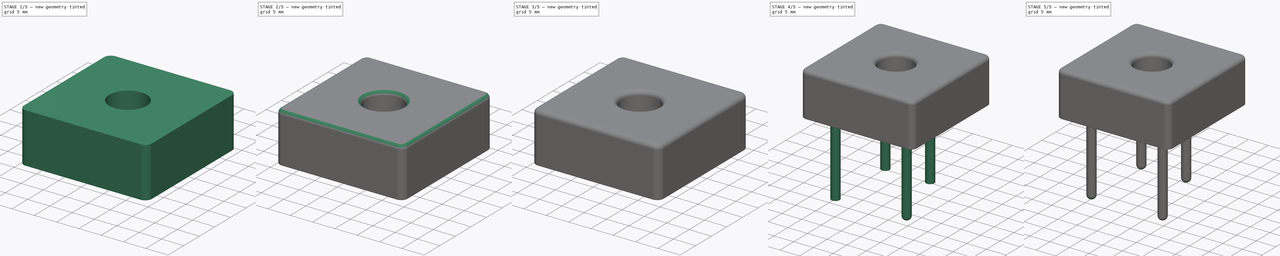
[diagram: build sequence overview — one tinted view per stage of 5, left to right]
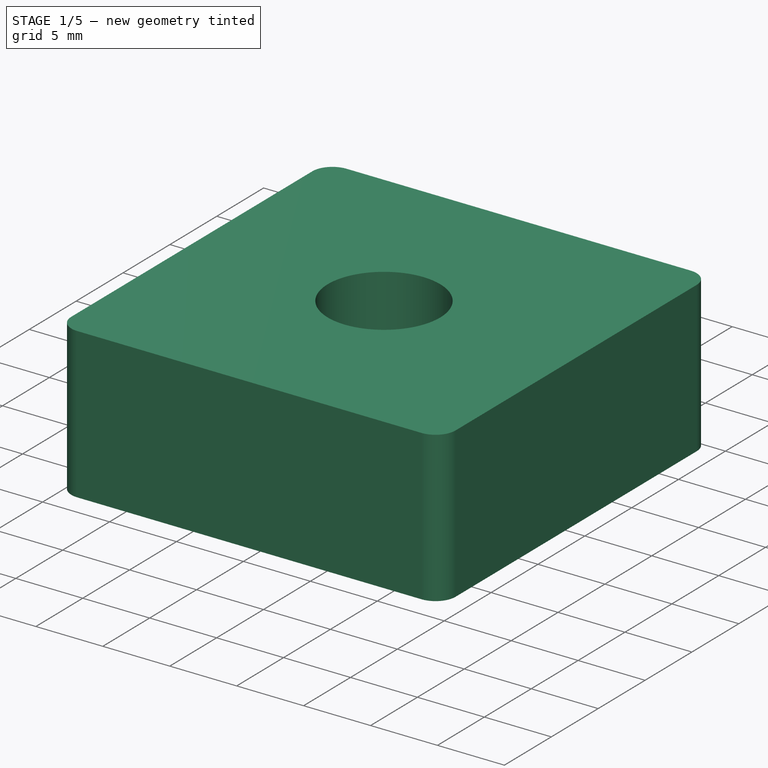
[diagram: stage 1 of 5 — iso view after this stage's code; geometry added in this stage tinted green]
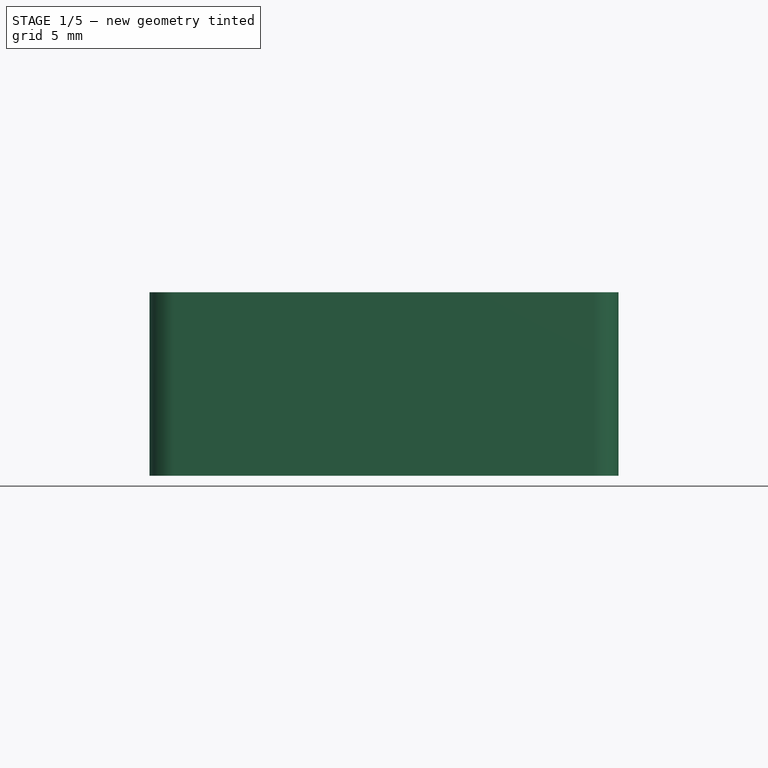
[diagram: stage 1 of 5 — front view after this stage's code; geometry added in this stage tinted green]
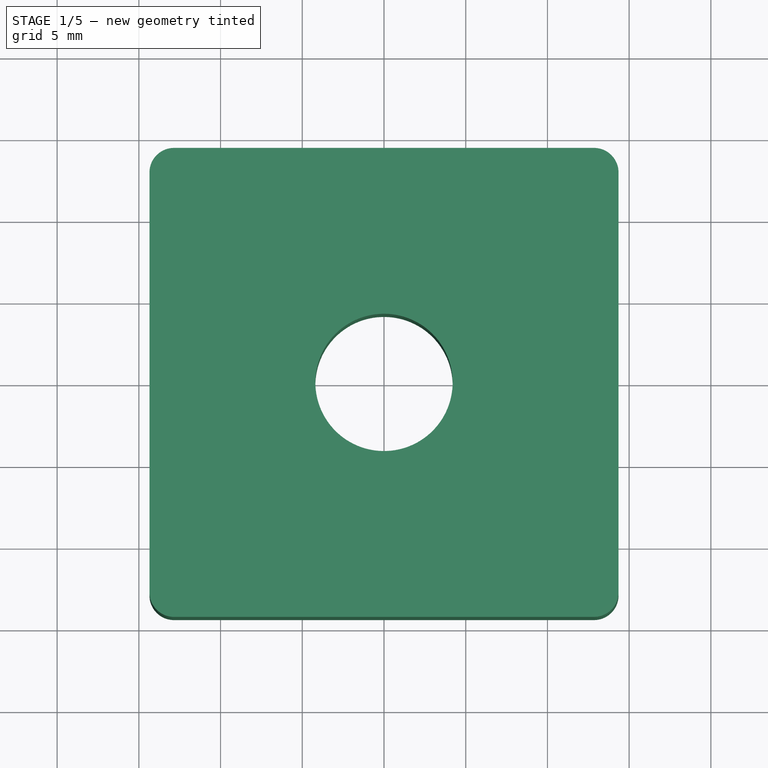
[diagram: stage 1 of 5 — top view after this stage's code; geometry added in this stage tinted green]
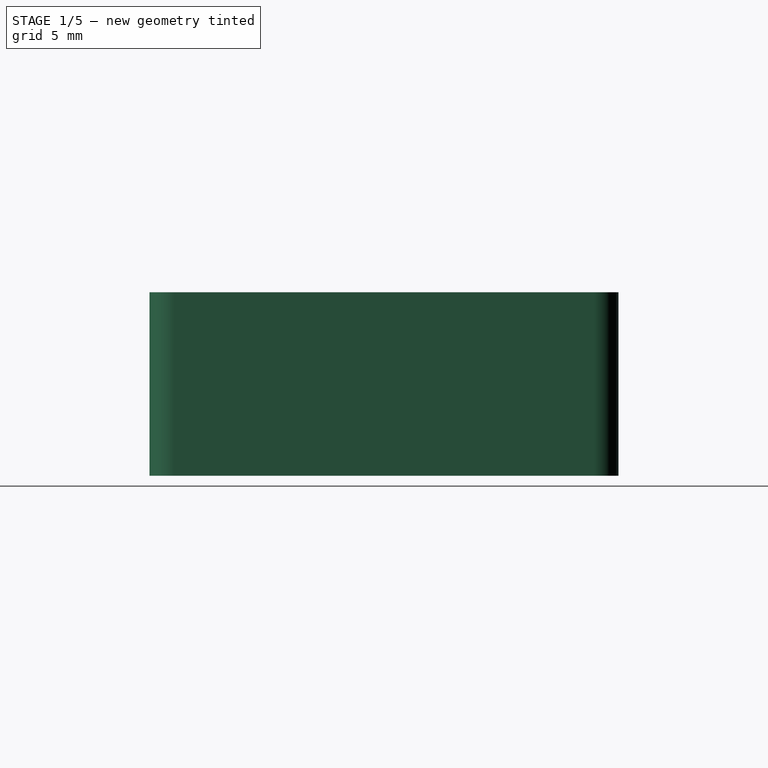
[diagram: stage 1 of 5 — right view after this stage's code; geometry added in this stage tinted green]
FCSTD DOCUMENT  (FreeCAD 0.15R4671 (Git))
Label: Mostik
License: All rights reserved
LicenseURL: http://en.wikipedia.org/wiki/All_rights_reserved
objects: PartDesign::Fillet×9, Sketcher::SketchObject×3, PartDesign::Pocket×3, Part::Cut×3, Part::Box×2, PartDesign::Pad×1
note: 25 computed .brp shape members not serialized (recipe doc carries the construction recipe); baked Part::Feature solids carry a one-line shape summary decoded from their .brp

FEATURE [Part::Box] Box  label="Kocka"
  Height = 11.23
  Length = 28.7
  Placement = pos=(-14.35,-14.35,5.5) rot=(0,0,1;0rad)
  Width = 28.7
FEATURE [PartDesign::Pocket] Pocket001
  Length = 10.38
  Placement = pos=(-14.35,-14.35,5.5) rot=(0,0,1;0rad)
  Sketch = -> Sketch
  Type = 0
FEATURE [Sketcher::SketchObject] Sketch001
  Placement = pos=(-14.35,-14.35,5.5) rot=(1,0,0;3.14159rad)
  Support = -> Pocket001 [Face13]
  sketch-geometry (1):
    g0: Circle CenterX=14.35 CenterY=-14.35 CenterZ=0 NormalX=0 NormalY=0 NormalZ=1 Radius=4.2
  constraints (3):
    c: Radius(g0) = 4.2
    c: DistanceY(g-1,g0) = -14.35
    c: DistanceX(g-1,g0) = 14.35
FEATURE [PartDesign::Pocket] Pocket002
  Length = 5
  Placement = pos=(-14.35,-14.35,5.5) rot=(0,0,1;0rad)
  Sketch = -> Sketch001
  Type = 1
FEATURE [PartDesign::Fillet] Fillet
  Base = -> Pocket002 [Edge6,Edge12,Edge3,Edge1]
  Placement = pos=(-14.35,-14.35,5.5) rot=(0,0,1;0rad)
  Radius = 1.5
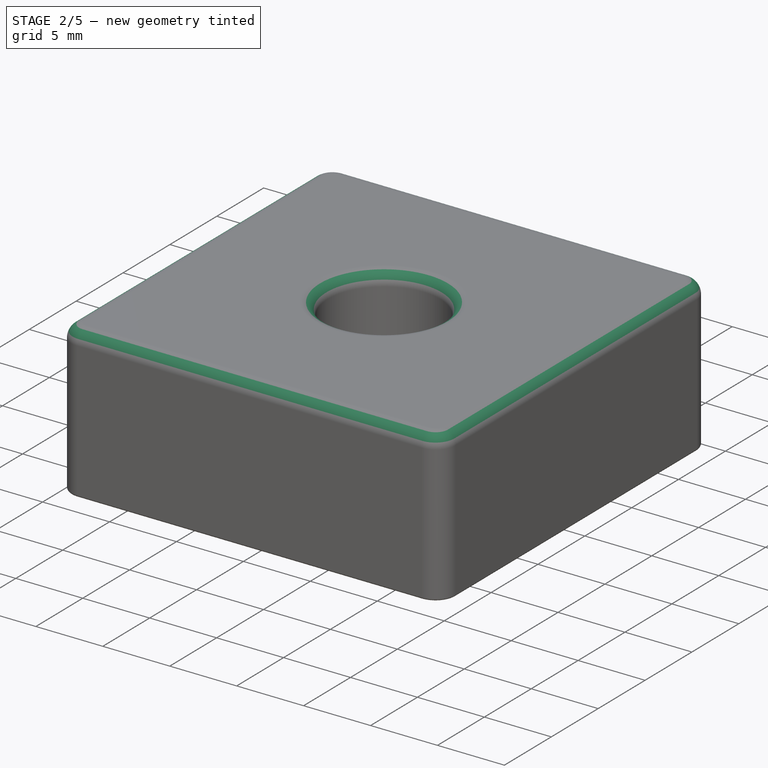
[diagram: stage 2 of 5 — iso view after this stage's code; geometry added in this stage tinted green]
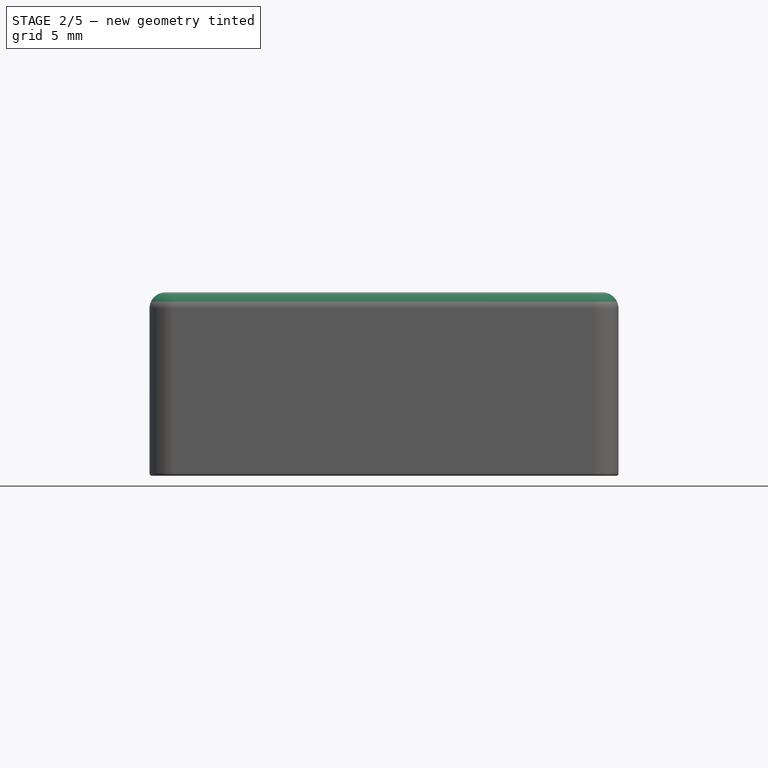
[diagram: stage 2 of 5 — front view after this stage's code; geometry added in this stage tinted green]
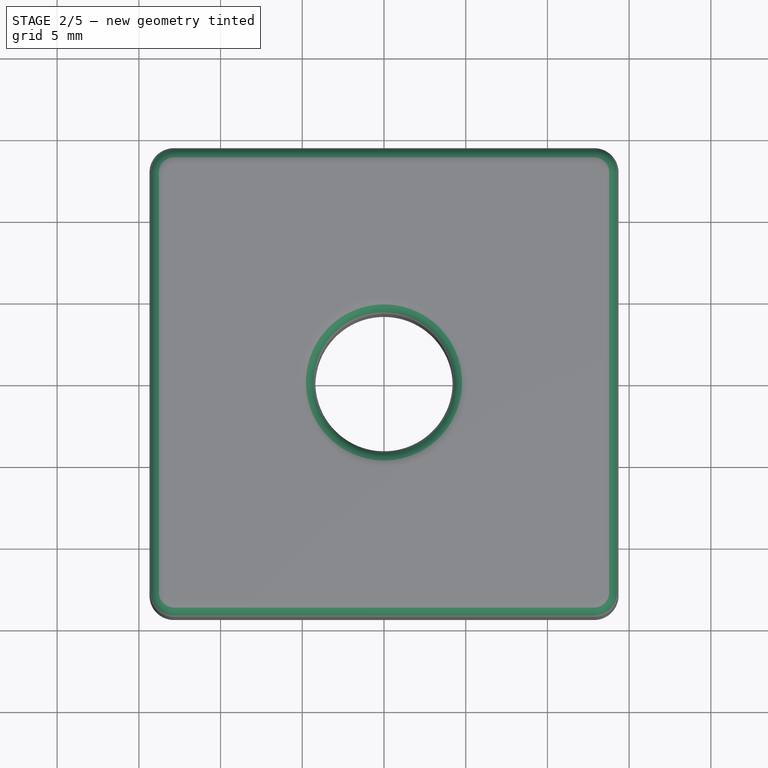
[diagram: stage 2 of 5 — top view after this stage's code; geometry added in this stage tinted green]
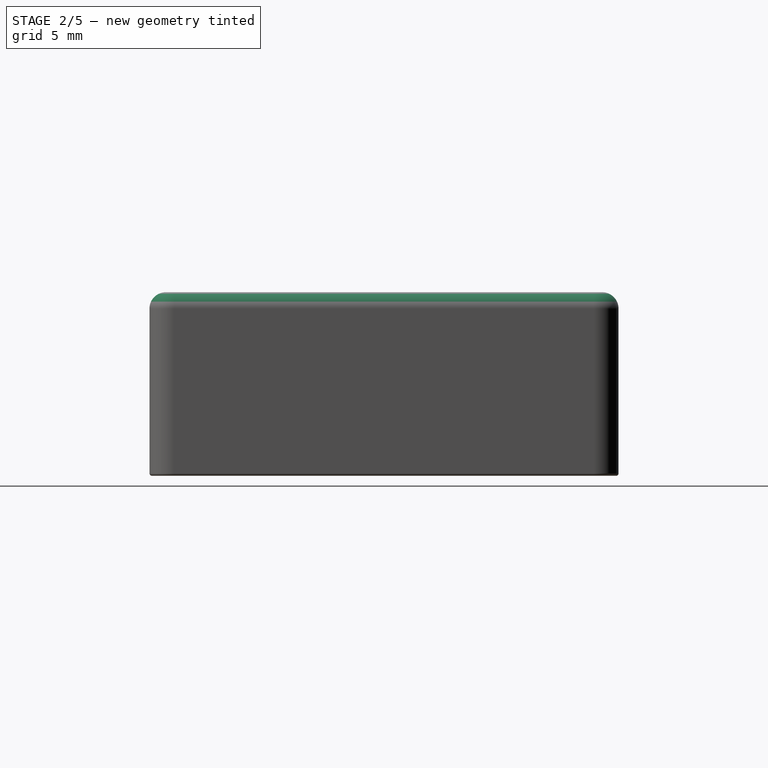
[diagram: stage 2 of 5 — right view after this stage's code; geometry added in this stage tinted green]
FEATURE [PartDesign::Fillet] Fillet001
  Base = -> Fillet [Edge7]
  Placement = pos=(-14.35,-14.35,5.5) rot=(0,0,1;0rad)
  Radius = 1
FEATURE [PartDesign::Fillet] Fillet002
  Base = -> Fillet001 [Edge34]
  Placement = pos=(-14.35,-14.35,5.5) rot=(0,0,1;0rad)
  Radius = 1
FEATURE [PartDesign::Fillet] Fillet003
  Base = -> Fillet002 [Edge31]
  Placement = pos=(-14.35,-14.35,5.5) rot=(0,0,1;0rad)
  Radius = 0.15
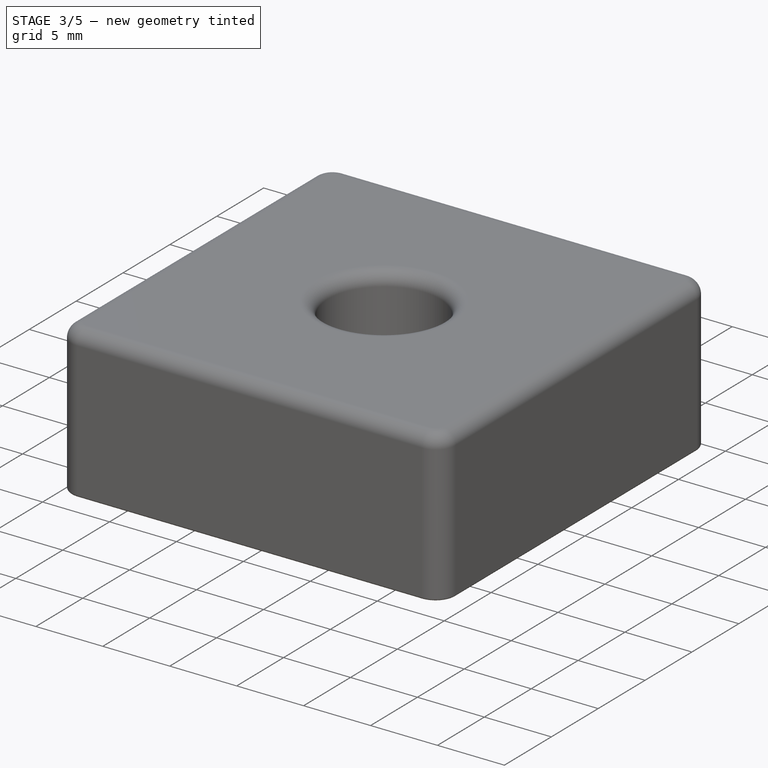
[diagram: stage 3 of 5 — iso view after this stage's code; geometry added in this stage tinted green]
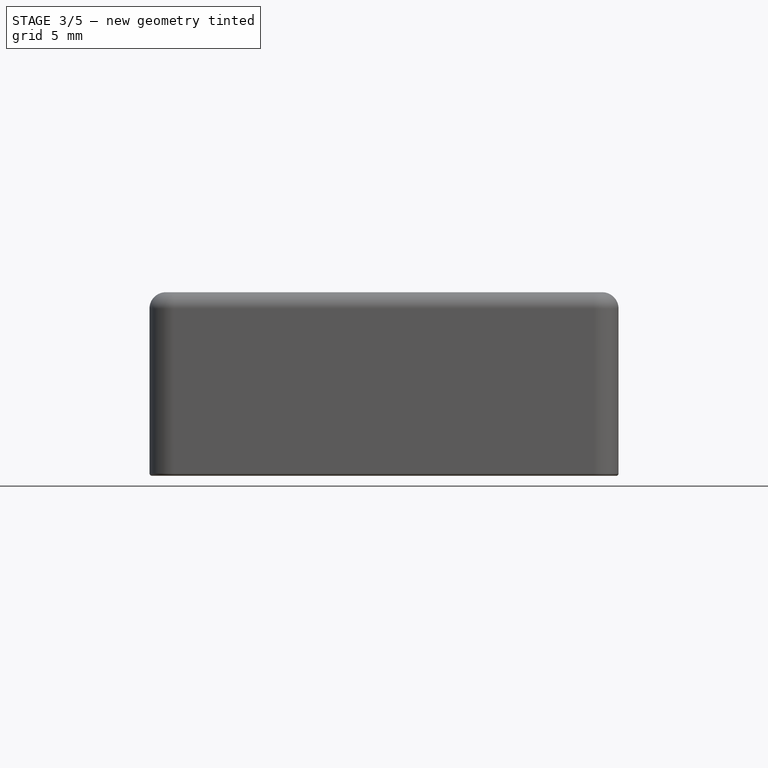
[diagram: stage 3 of 5 — front view after this stage's code; geometry added in this stage tinted green]
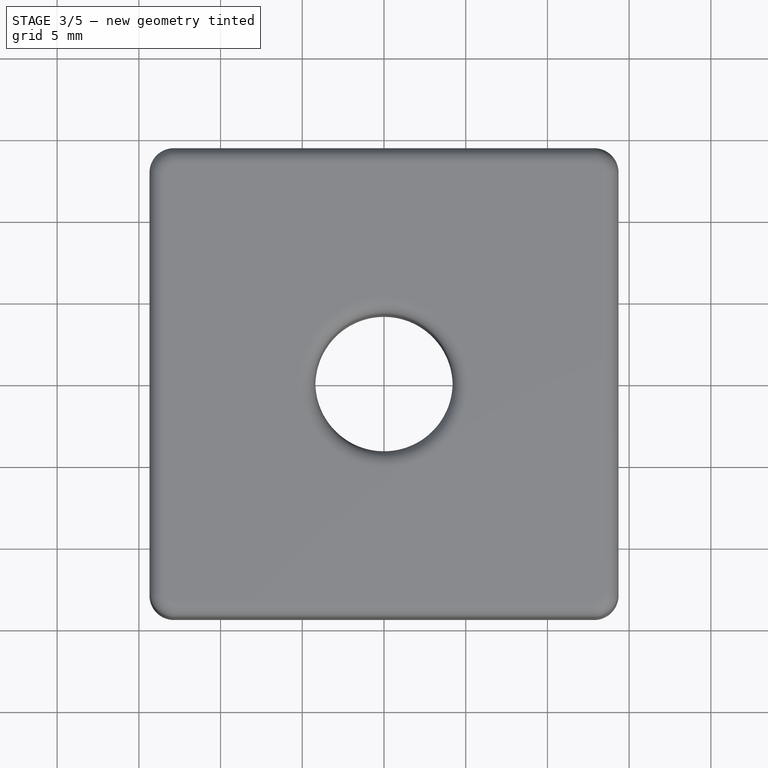
[diagram: stage 3 of 5 — top view after this stage's code; geometry added in this stage tinted green]
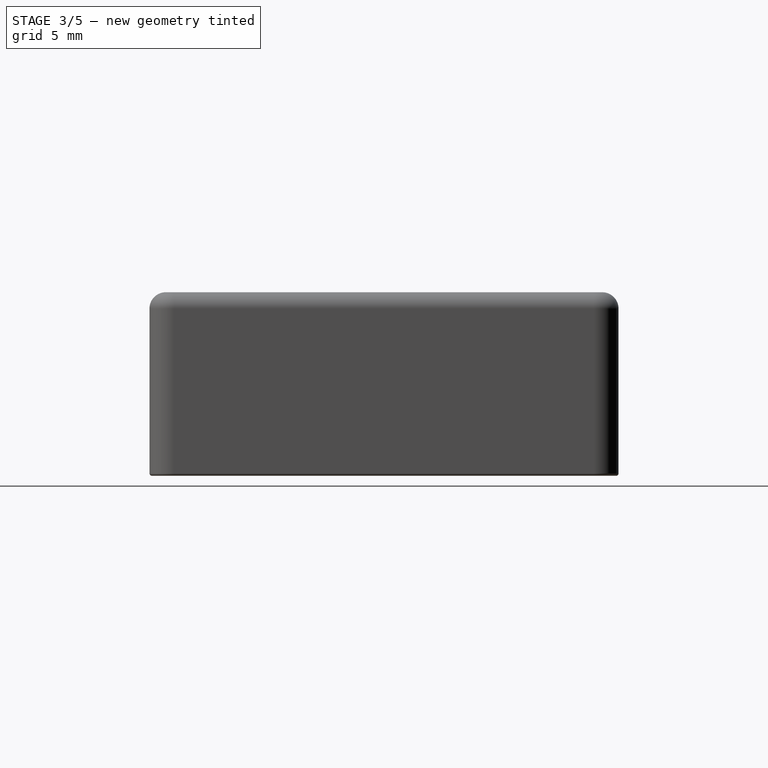
[diagram: stage 3 of 5 — right view after this stage's code; geometry added in this stage tinted green]
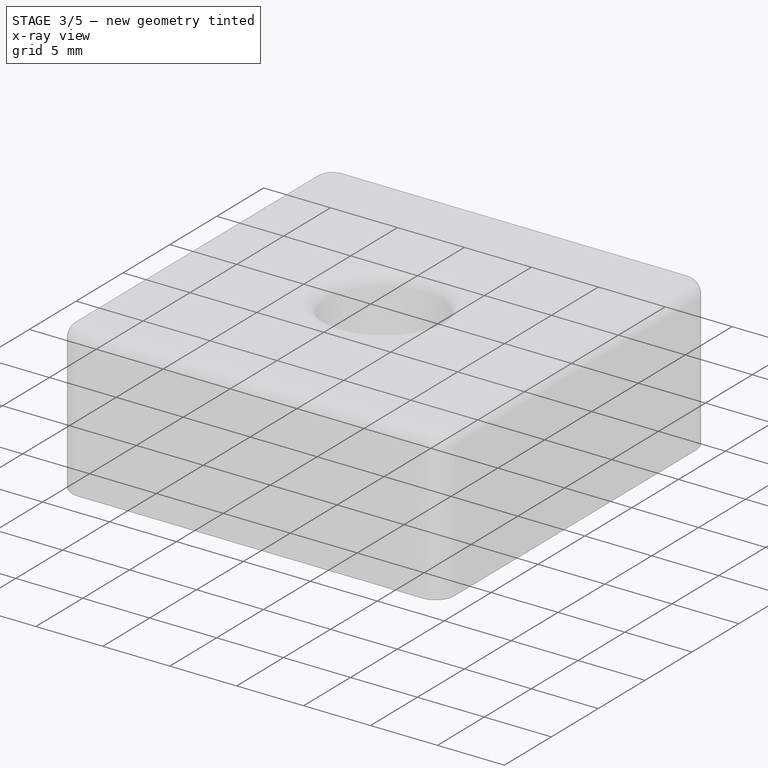
[diagram: stage 3 of 5 — x-ray composite at the iso view; earlier geometry ghosted, this stage's added geometry solid]
FEATURE [Part::Box] Box001  label="Kocka001"
  Height = 11
  Length = 28
  Placement = pos=(-14.35,-14.35,5.5) rot=(0,0,1;0rad)
  Width = 28
FEATURE [Sketcher::SketchObject] Sketch
  Placement = pos=(-14.35,-14.35,5.5) rot=(1,0,0;3.14159rad)
  Support = -> Box [Face5]
  sketch-geometry (5):
    g0: LineSegment StartX=0.85 StartY=-0.85 StartZ=0 EndX=27.85 EndY=-0.85 EndZ=0
    g1: LineSegment StartX=27.85 StartY=-0.85 StartZ=0 EndX=27.85 EndY=-27.85 EndZ=0
    g2: LineSegment StartX=27.85 StartY=-27.85 StartZ=0 EndX=0.85 EndY=-27.85 EndZ=0
    g3: LineSegment StartX=0.85 StartY=-27.85 StartZ=0 EndX=0.85 EndY=-0.85 EndZ=0
    g4: Circle CenterX=14.35 CenterY=-14.35 CenterZ=0 NormalX=0 NormalY=0 NormalZ=1 Radius=4.9
  constraints (16):
    c: Coincident(g0,g1)
    c: Coincident(g1,g2)
    c: Coincident(g2,g3)
    c: Coincident(g3,g0)
    c: Horizontal(g0)
    c: Horizontal(g2)
    c: Vertical(g1)
    c: Vertical(g3)
    c: Equal(g2,g1)
    c: Equal(g1,g0)
    c: DistanceY(g1) = -27
    c: DistanceY(g-1,g0) = -0.85
    c: DistanceX(g-1,g0) = 0.85
    c: Radius(g4) = 4.9
    c: DistanceY(g-1,g4) = -14.35
    c: DistanceX(g-1,g4) = 14.35
FEATURE [PartDesign::Pocket] Pocket
  Length = 10.38
  Placement = pos=(-14.35,-14.35,5.5) rot=(0,0,1;0rad)
  Sketch = -> Sketch
  Type = 0
FEATURE [Part::Cut] Cut  label="Fill"
  Base = -> Box001
  Tool = -> Pocket
FEATURE [PartDesign::Fillet] Fillet008  label="Body"
  Base = -> Fillet003 [Edge74]
  Placement = pos=(-14.35,-14.35,5.5) rot=(0,0,1;0rad)
  Radius = 0.25
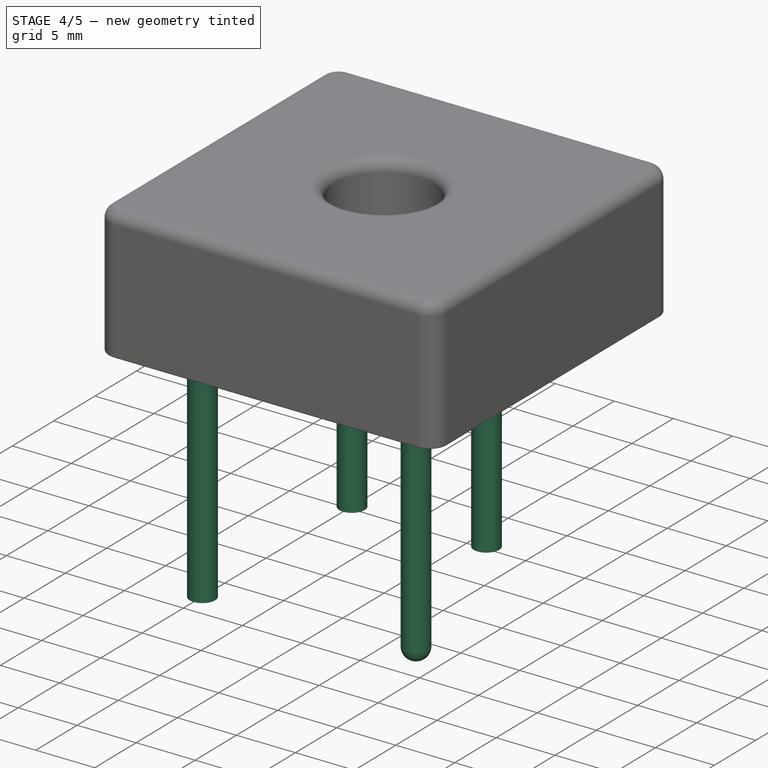
[diagram: stage 4 of 5 — iso view after this stage's code; geometry added in this stage tinted green]
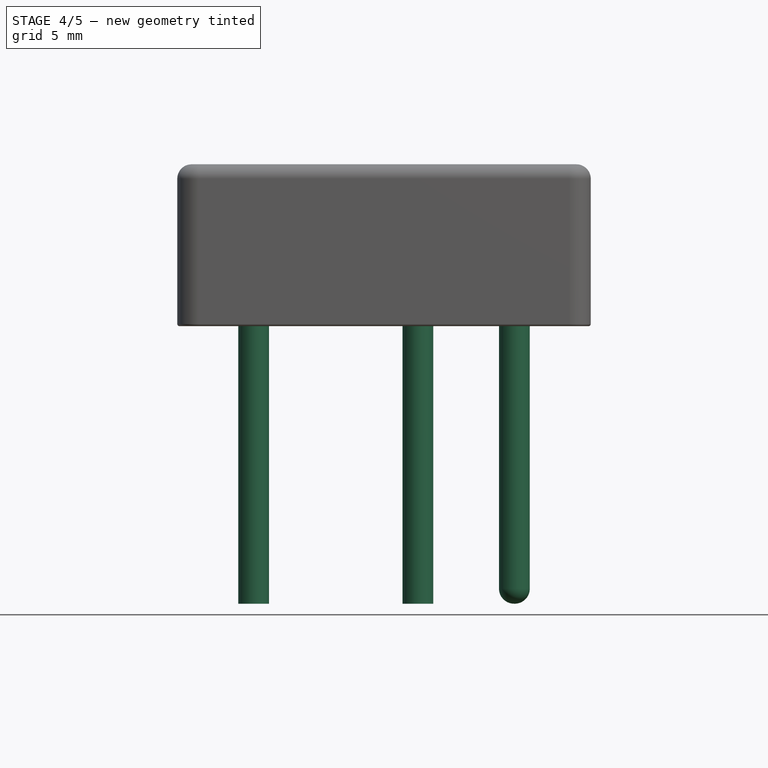
[diagram: stage 4 of 5 — front view after this stage's code; geometry added in this stage tinted green]
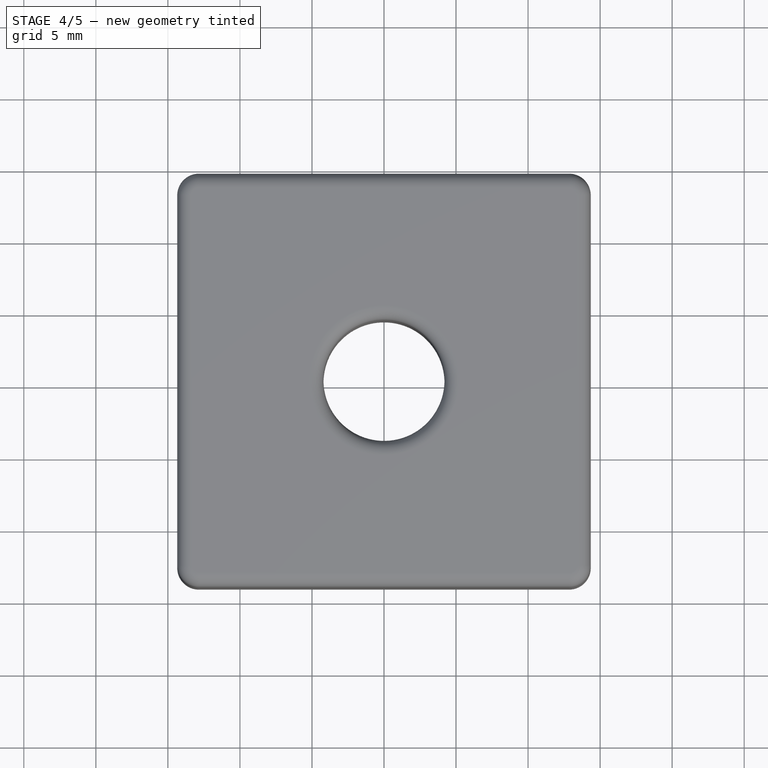
[diagram: stage 4 of 5 — top view after this stage's code; geometry added in this stage tinted green]
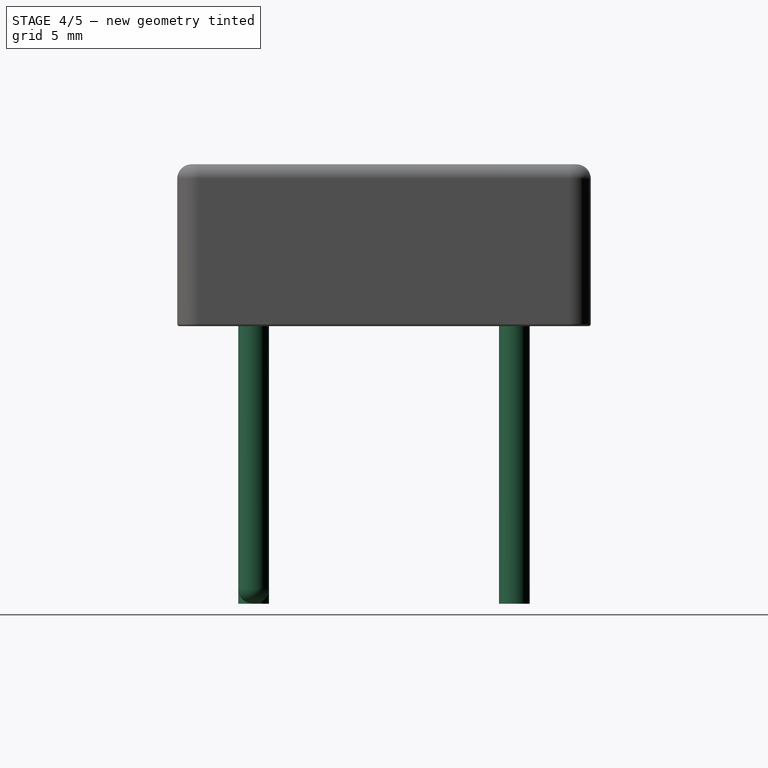
[diagram: stage 4 of 5 — right view after this stage's code; geometry added in this stage tinted green]
FEATURE [Sketcher::SketchObject] Sketch002
  Placement = pos=(0,0,5.5) rot=(1,0,0;3.14159rad)
  Support = -> Cut [Face1]
  sketch-geometry (4):
    g0: Circle CenterX=-9.05 CenterY=9.05 CenterZ=0 NormalX=0 NormalY=0 NormalZ=1 Radius=1.07
    g1: Circle CenterX=9.05 CenterY=9.05 CenterZ=0 NormalX=0 NormalY=0 NormalZ=1 Radius=1.07
    g2: Circle CenterX=-9.05 CenterY=-9.05 CenterZ=0 NormalX=0 NormalY=0 NormalZ=1 Radius=1.07
    g3: Circle CenterX=2.35 CenterY=-9.05 CenterZ=0 NormalX=0 NormalY=0 NormalZ=1 Radius=1.07
  constraints (12):
    c: DistanceY(g-1,g2) = -9.05
    c: DistanceY(g-1,g0) = 9.05
    c: Radius(g2) = 1.07
    c: Radius(g0) = 1.07
    c: DistanceX(g-1,g0) = -9.05
    c: DistanceX(g-1,g1) = 9.05
    c: DistanceY(g-1,g1) = 9.05
    c: Radius(g1) = 1.07
    c: DistanceY(g-1,g3) = -9.05
    c: Radius(g3) = 1.07
    c: DistanceX(g3,g2) = -11.4
    c: DistanceX(g-1,g2) = -9.05
FEATURE [PartDesign::Pad] Pad
  Length = 19.27
  Length2 = 100
  Sketch = -> Sketch002
  Type = 0
FEATURE [Part::Cut] Cut002
  Base = -> Pad
  Tool = -> Cut
FEATURE [PartDesign::Fillet] Fillet004
  Base = -> Cut002 [Edge8]
  Radius = 1.05
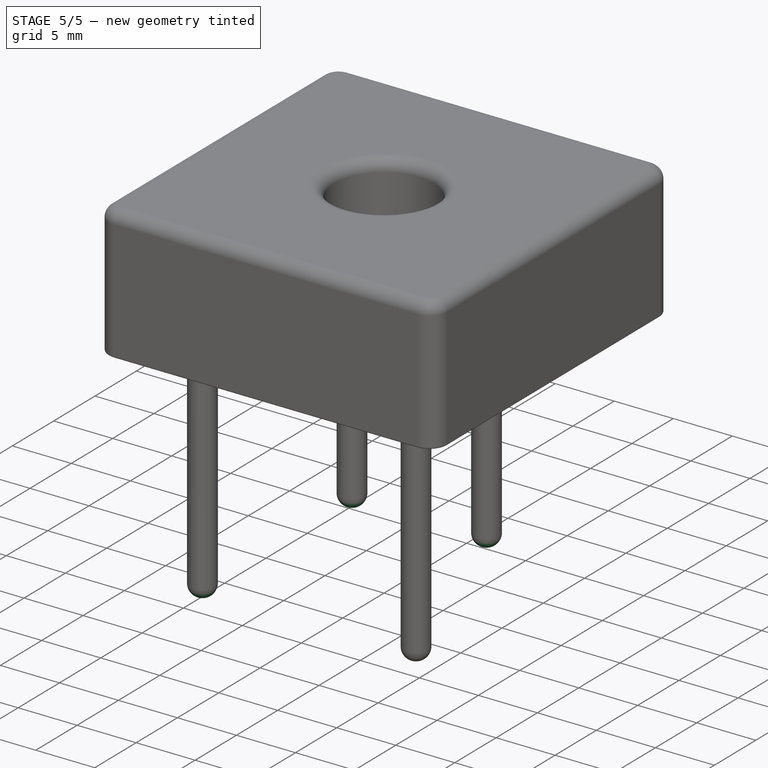
[diagram: stage 5 of 5 — iso view after this stage's code; geometry added in this stage tinted green]
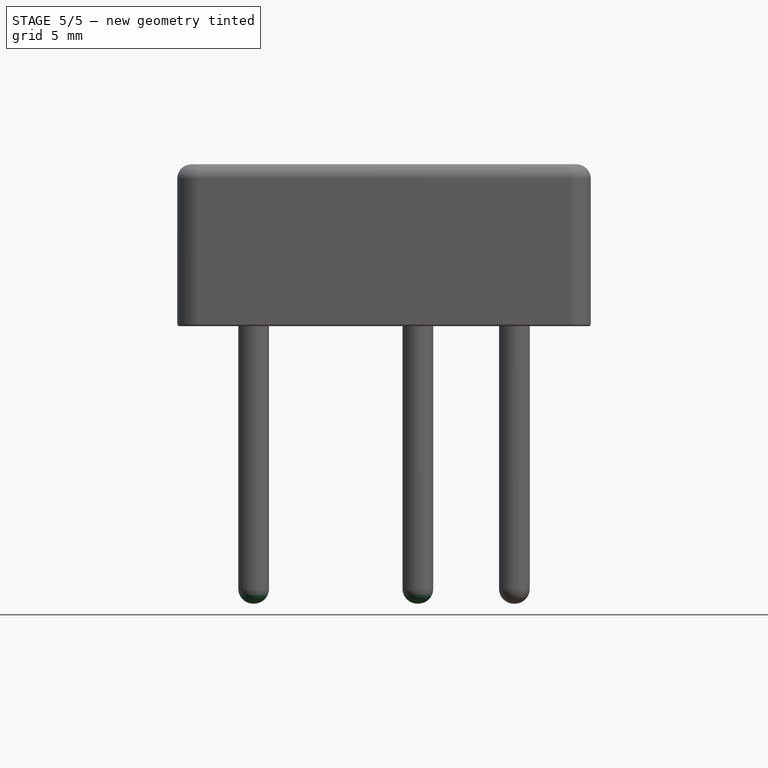
[diagram: stage 5 of 5 — front view after this stage's code; geometry added in this stage tinted green]
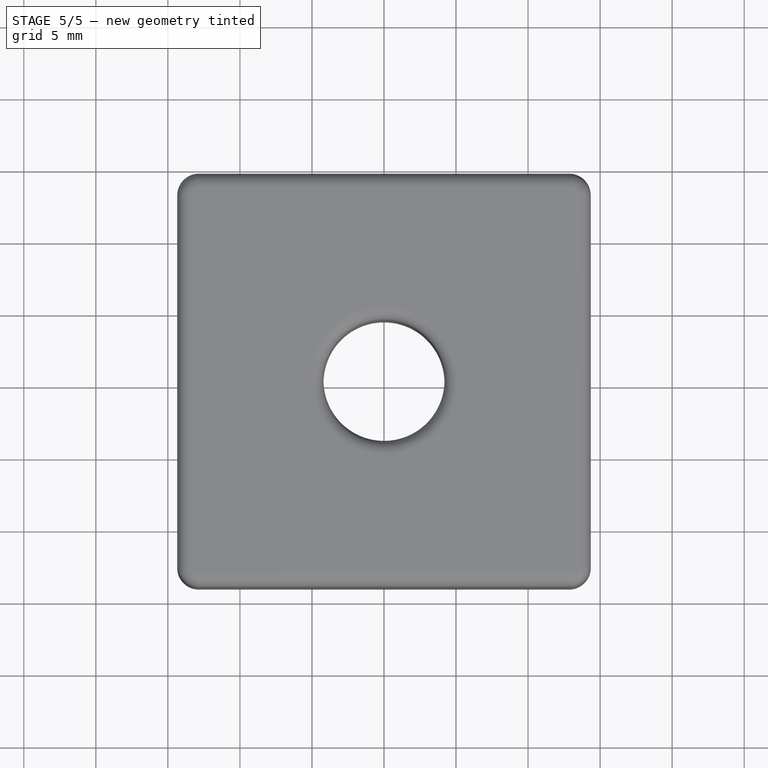
[diagram: stage 5 of 5 — top view after this stage's code; geometry added in this stage tinted green]
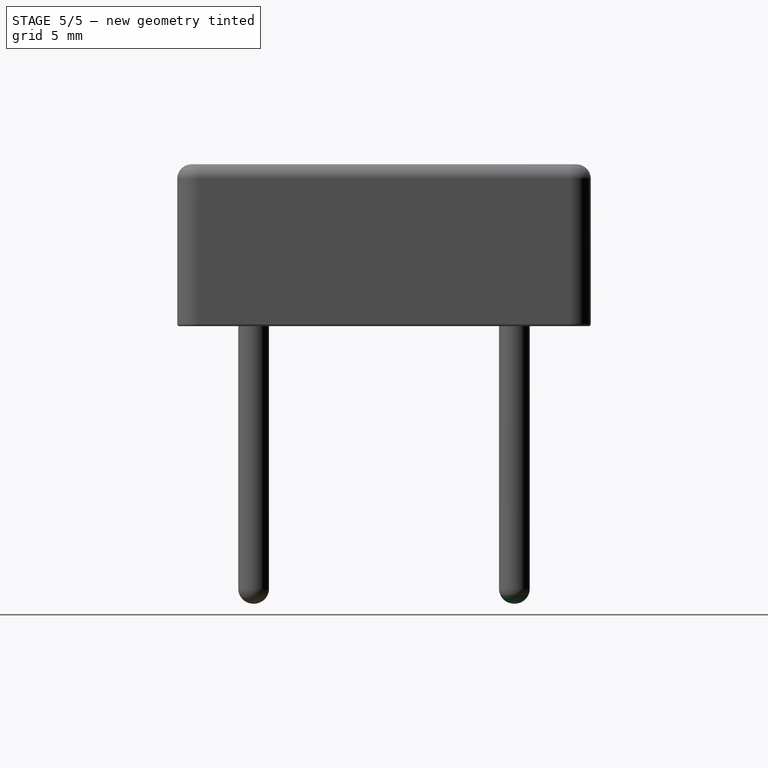
[diagram: stage 5 of 5 — right view after this stage's code; geometry added in this stage tinted green]
FEATURE [Part::Cut] Cut001  label="Fill001"
  Base = -> Box001
  Tool = -> Pocket
FEATURE [PartDesign::Fillet] Fillet005
  Base = -> Fillet004 [Edge10]
  Radius = 1.05
FEATURE [PartDesign::Fillet] Fillet006
  Base = -> Fillet005 [Edge15]
  Radius = 1.05
FEATURE [PartDesign::Fillet] Fillet007  label="Pads"
  Base = -> Fillet006 [Edge17]
  Radius = 1.05
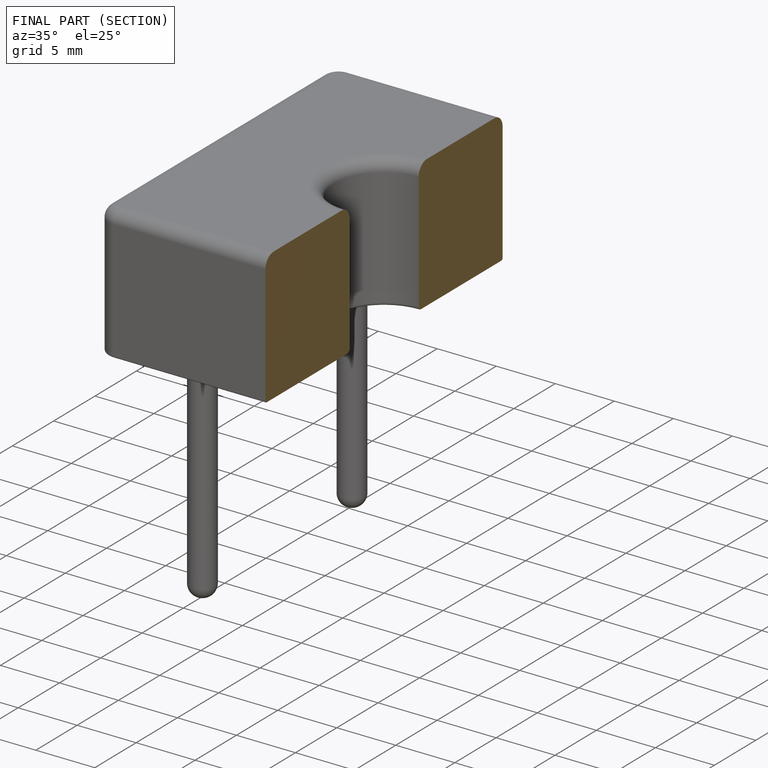
[diagram: finished part — half-section view (interior)]
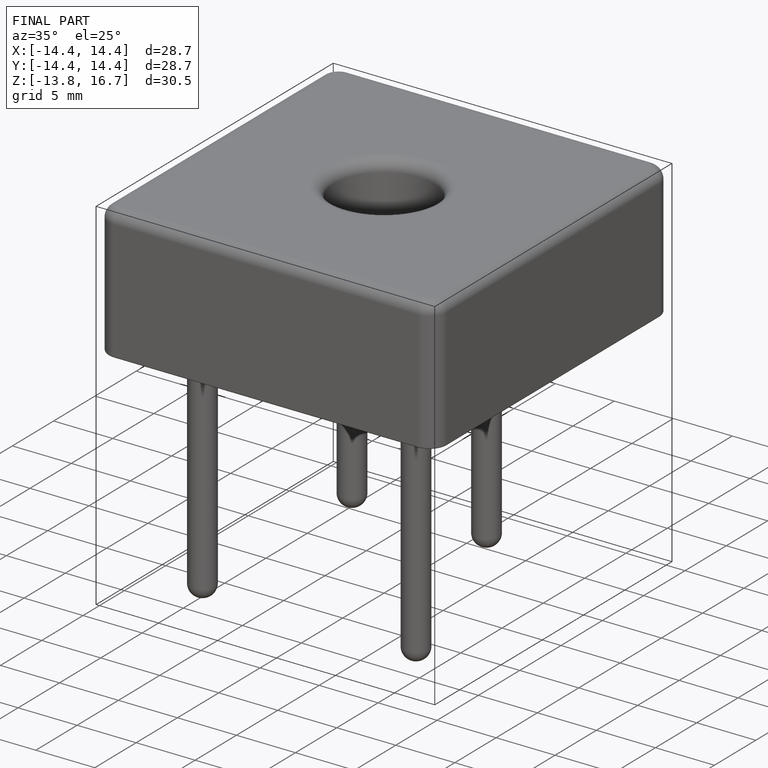
[diagram: finished part — iso view with bounding-box wireframe]
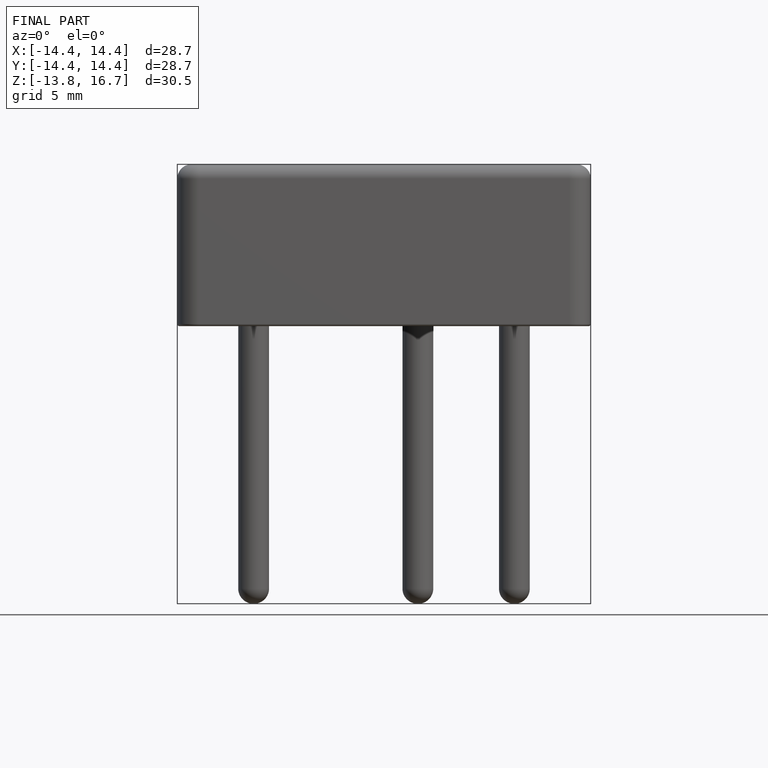
[diagram: finished part — front view with bounding-box wireframe]
